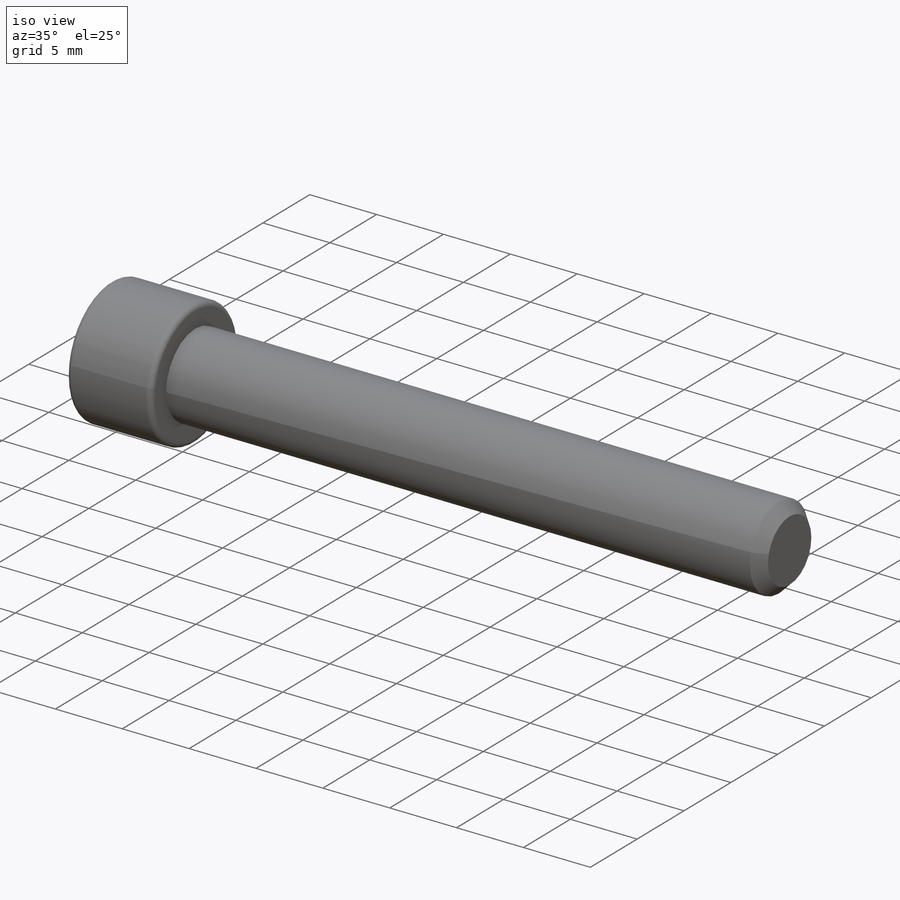
[diagram: iso view]
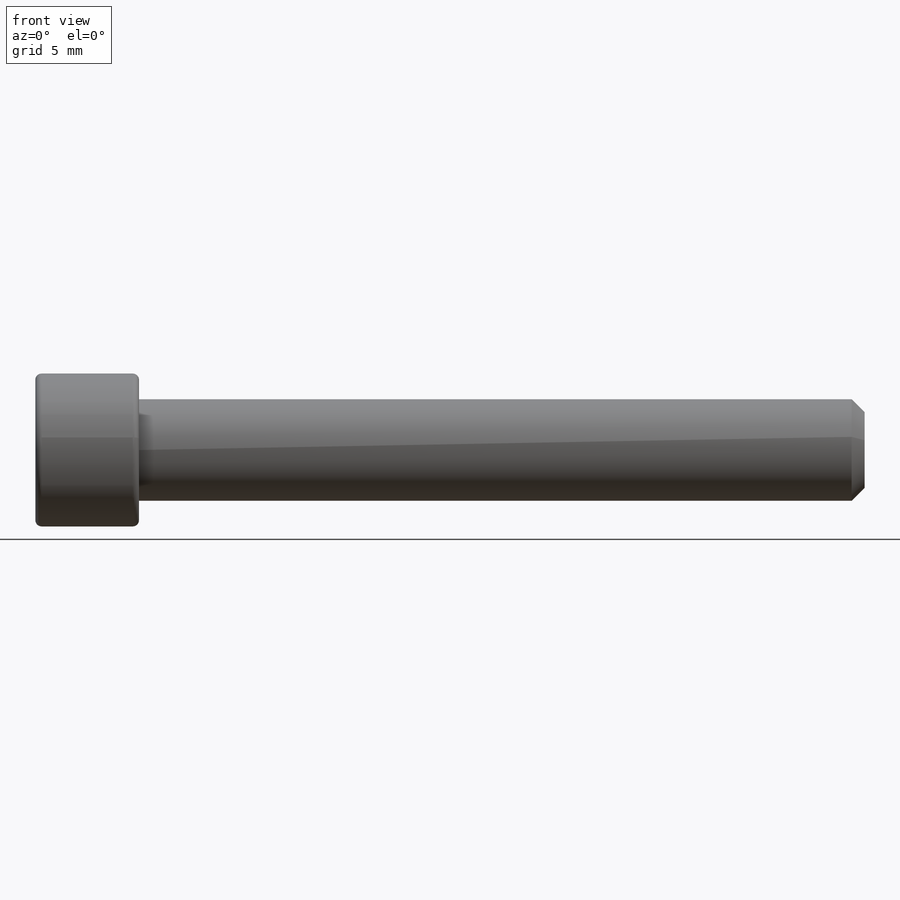
[diagram: front view]
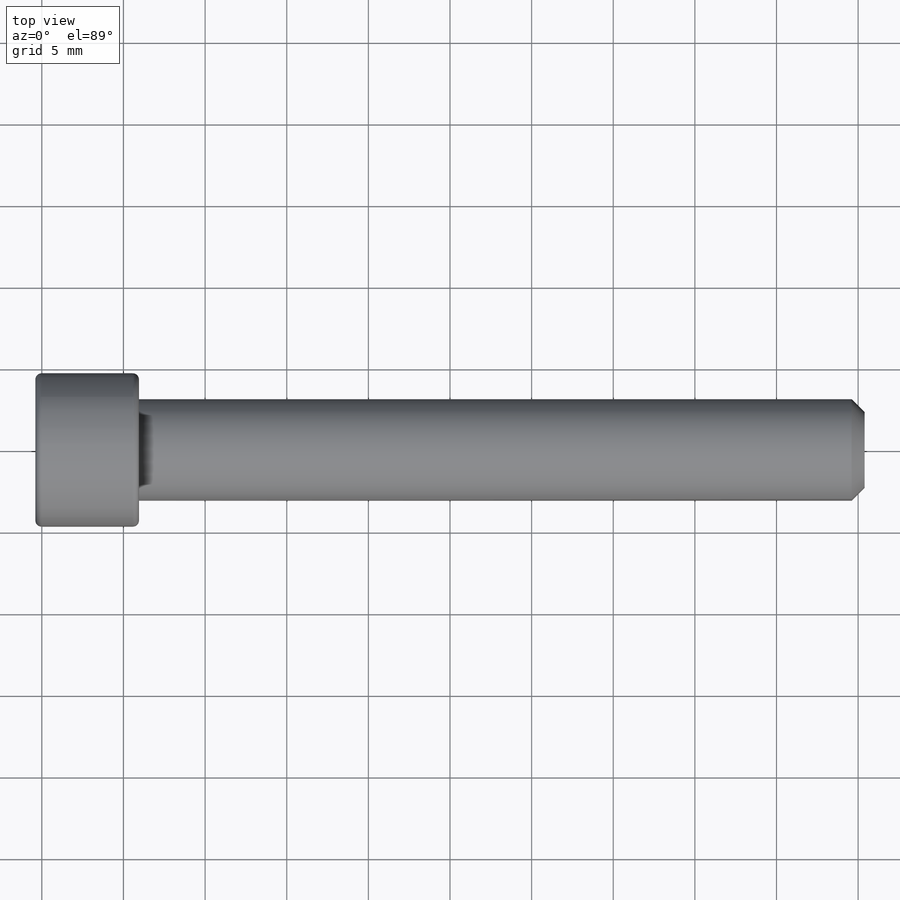
[diagram: top view]
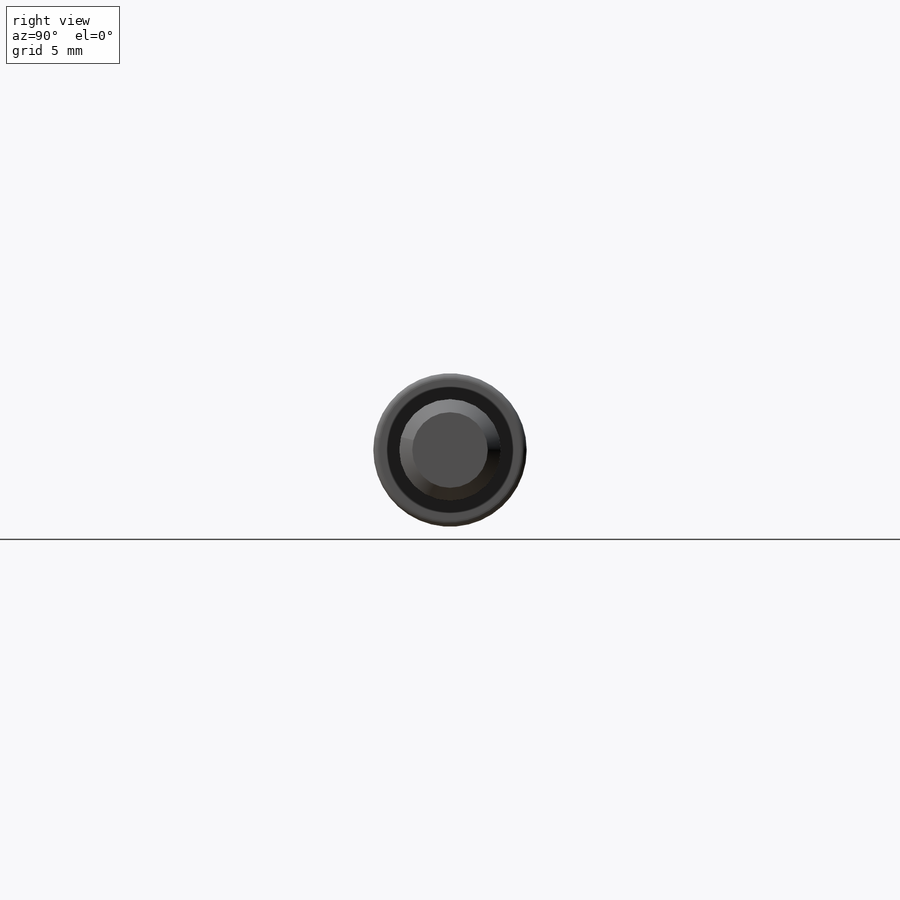
[diagram: right view]
SOLIDWORKS PART (.sldprt)
format: sldprt  version: not decoded by parser v0  size: 322,560 bytes
history: native  units: mm
features: sketch x2, material x1, revolve x1, cut_extrude x1, fillet x1, chamfer x1 (+11 scaffold rows collapsed)
feature tree (18):
  scaffold x11  (default folders/planes/origin — collapsed)
  material  "Galvanized Steel"
  sketch  "Sketch1"  dims[c1.D1=9.398mm c1.D2=6.223mm c1.D3=6.223mm c1.D4=19.05mm c1.D5=~2.372551mm c2.D5=45.0deg c2.D6=~0.79375mm c2.D7=0.508mm c2.D3=50.8mm c2.D4=6.35mm]
  revolve  "Revolve1"  Angle=360deg
  sketch  "Sketch2"  dims[D1=~5.499261mm D2=4.7625mm D3=~2.749631mm]
  cut_extrude  "Extrude1"  Depth=3.81mm
  fillet  "Fillet1"  Radius=0.381mm
  chamfer  "Chamfer1"  Distance=0.79502mm Angle=45deg
decode coverage: 6 of 6 modeling features carry decoded parameters
note: ~ marks probable driven/reference dimensions
note: suppression state not decoded; provenance and decode notes live in map.json
